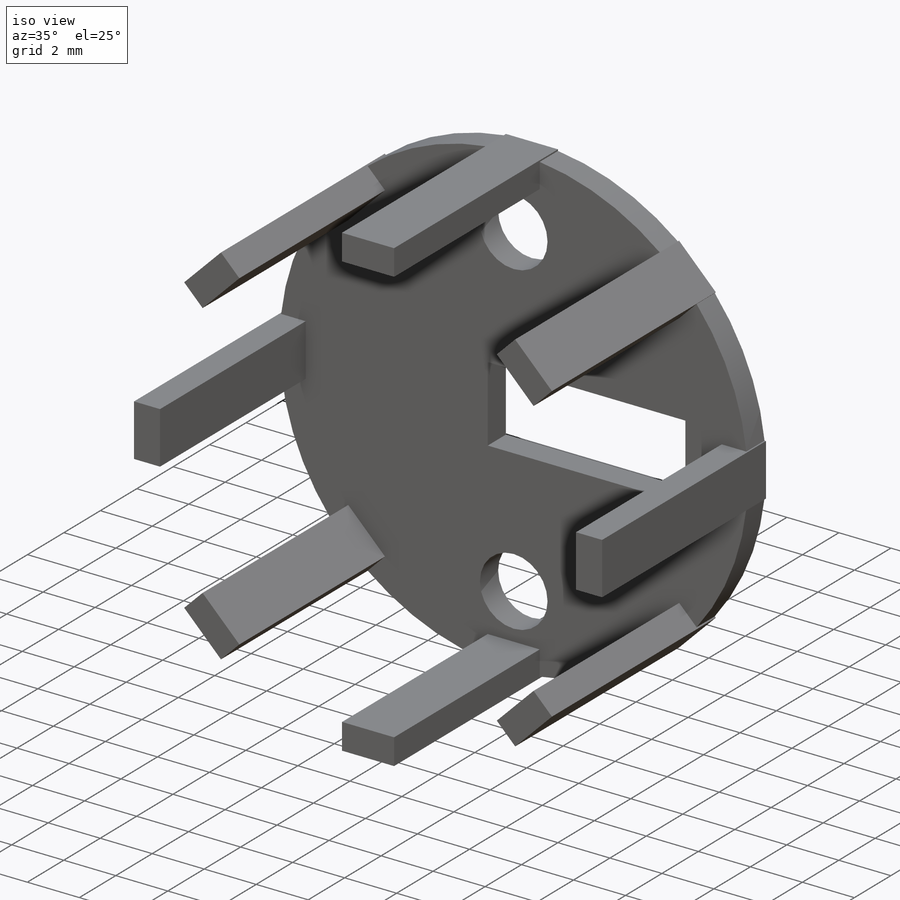
[diagram: iso view]
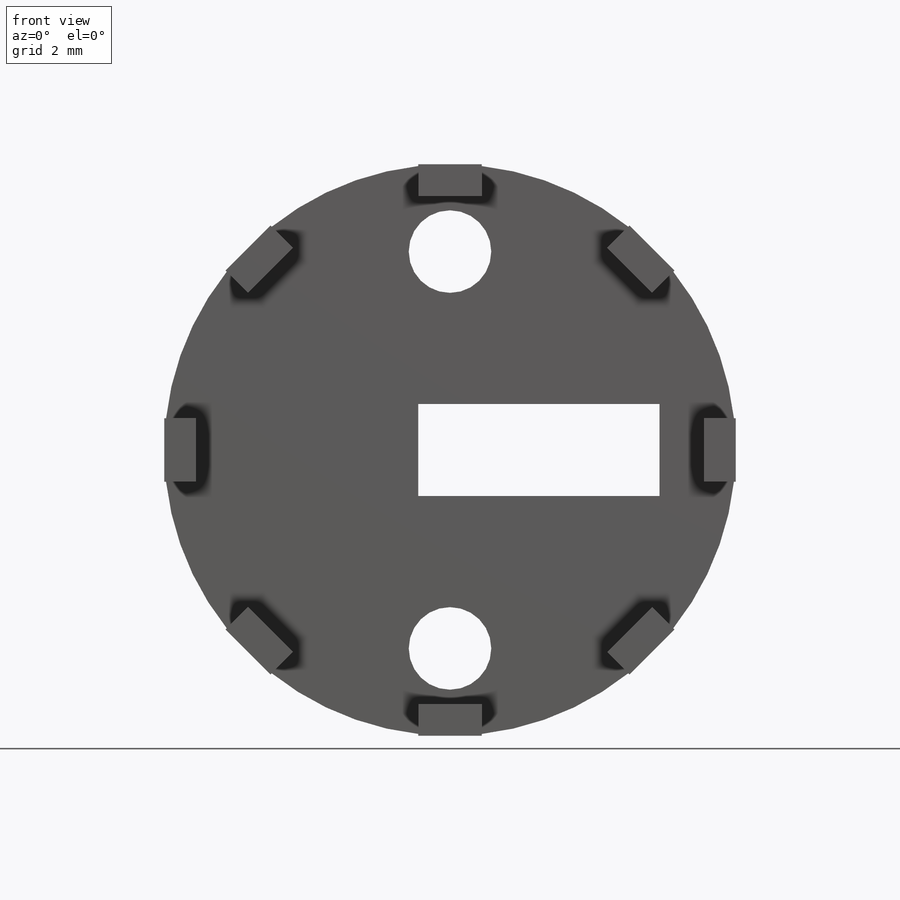
[diagram: front view]
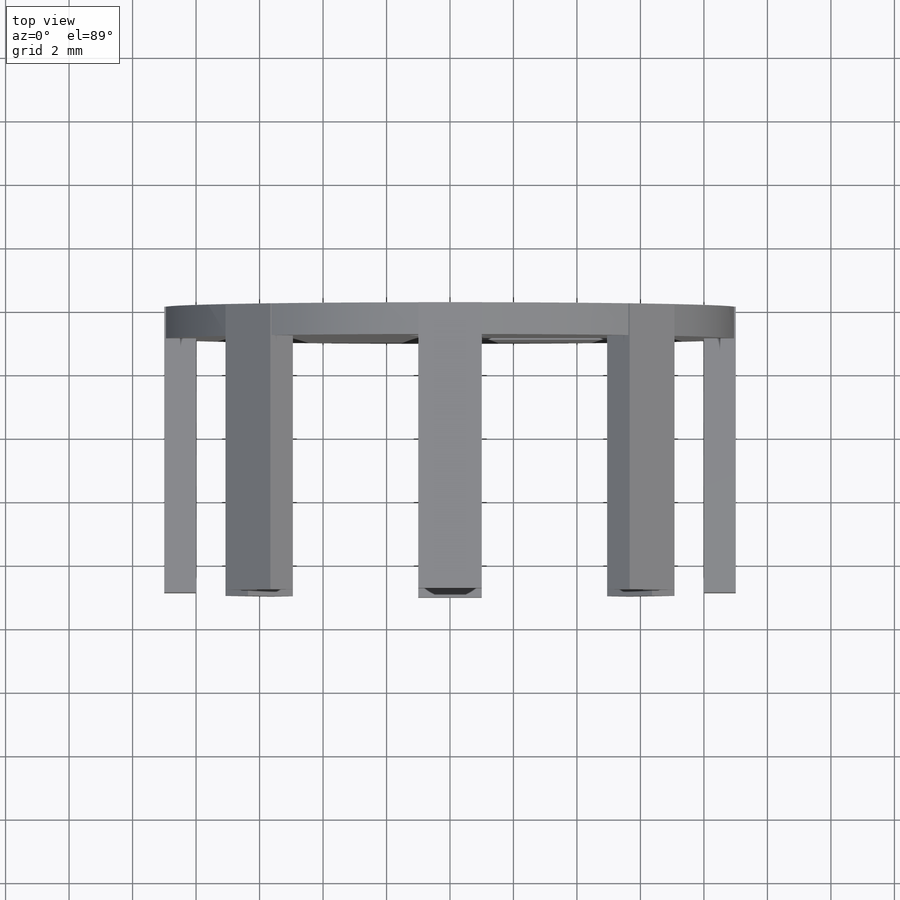
[diagram: top view]
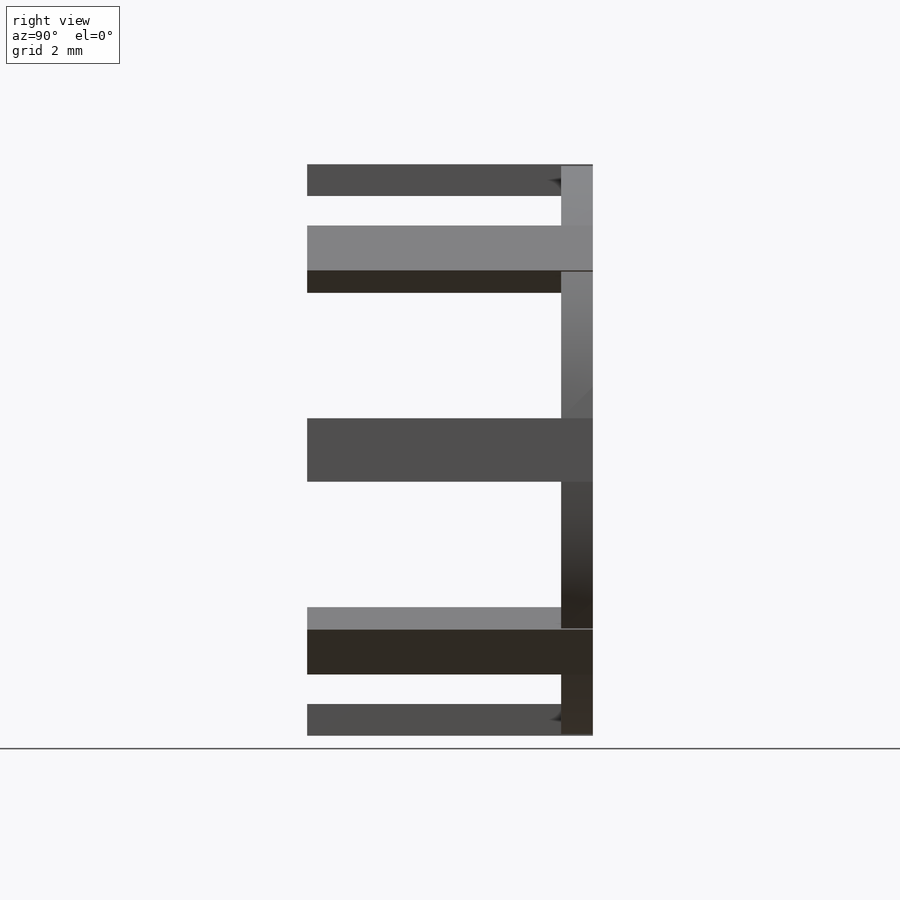
[diagram: right view]
SOLIDWORKS PART (.sldprt)
format: sldprt  version: not decoded by parser v0  size: 332,800 bytes
history: native  units: mm
features: sketch x7, cut_extrude x5, plane x3, extrude x2, material x1, pattern_circular x1 + 2 further entries (+11 scaffold rows collapsed)
feature tree (32):
  scaffold x11  (default folders/planes/origin — collapsed)
  material  "材料 <未指定>"
  "ｻｰﾌｪｽ ﾎﾞﾃﾞｨ"
  "ｿﾘｯﾄﾞ ﾎﾞﾃﾞｨ"
  plane  "正面"
  plane  "平面"
  plane  "右側面"
  sketch  "ｽｹｯﾁ1"  dims[D1=18.0mm]
  extrude  "ﾎﾞｽ - 押し出し1"  Depth=1mm
  sketch  "ｽｹｯﾁ3"  dims[D1=20.1mm]
  cut_extrude  "ｶｯﾄ - 押し出し3"  Depth=4.5mm
  sketch  "ｽｹｯﾁ2"  dims[D1=2.6mm D2=2.6mm D3=6.25mm D4=6.25mm D5=2.1mm D6=2.1mm D7=2.1mm]
  cut_extrude  "ｶｯﾄ - 押し出し1"  [1 undecoded]
  sketch  "ｽｹｯﾁ4"  dims[c1.D1=1.9mm c1.D2=13.2mm c2.D1=2.9mm c2.D2=7.6mm c2.D3=1.0mm]
  cut_extrude  "ｶｯﾄ - 押し出し6"  [1 undecoded]
  sketch  "ｽｹｯﾁ5"  dims[D1=1.0mm D2=2.0mm D4=8.5mm D3=8.0]
  extrude  "ﾎﾞｽ - 押し出し3"  Depth=9mm
  sketch  "ｽｹｯﾁ6"  dims[c1.D2=6.0mm c1.D3=15.0mm c1.D1=4.15mm c1.D4=10.8mm c2.D3=8.0]
  cut_extrude  "ｶｯﾄ - 押し出し7"  Depth=5mm
  sketch  "ｽｹｯﾁ7"  dims[D1=5.0mm]
  cut_extrude  "ｶｯﾄ - 押し出し8"  Depth=10mm
  pattern_circular  "円形ﾊﾟﾀｰﾝ1"  Count=8 Angle=360deg
decode coverage: 13 of 15 modeling features carry decoded parameters; 2 rows unclassified (native names shown)
note: 2 parameter values undecoded
note: suppression state not decoded; provenance and decode notes live in map.json
